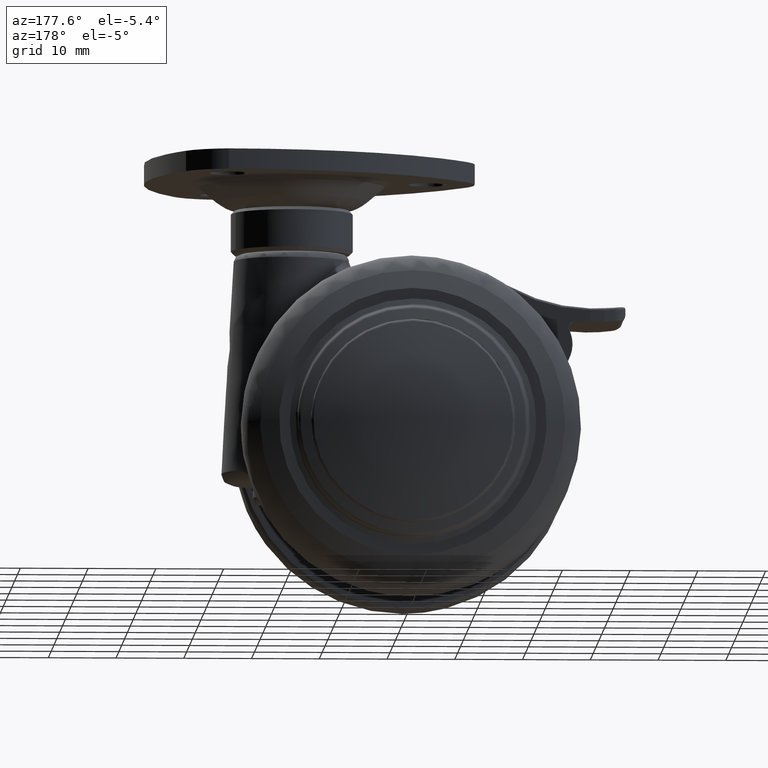
[diagram: clean part render]
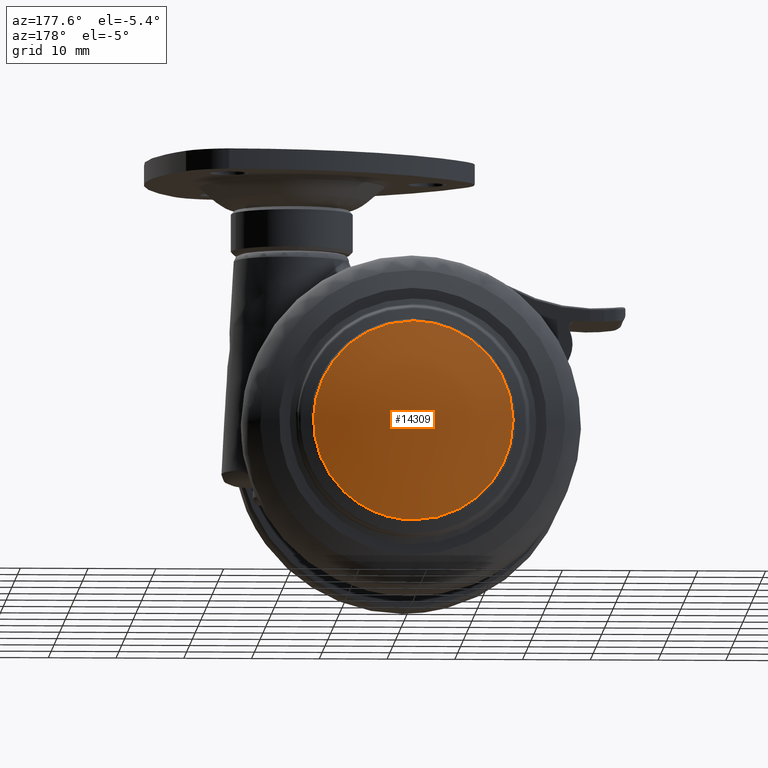
[diagram: same view with one face highlighted and labeled with its STEP entity id]
A machine part, auxiliary view. The second image highlights one B-rep face of the part: STEP entity #14309.
In plain terms, the highlighted face is a freeform B-spline surface patch.
Its self-contained STEP definition (entity closure, byte-faithful):
#11218=CARTESIAN_POINT('',(5.926938161823641,22.599255053341800,-13.481635294383331));
#11219=VERTEX_POINT('',#11218);
#11233=CARTESIAN_POINT('',(0.0,22.599255056600999,14.726951002130320));
#11234=VERTEX_POINT('',#11233);
#11235=CARTESIAN_POINT('',(0.0,22.599255056600999,14.726951002130320));
#11236=CARTESIAN_POINT('',(14.726951002130319,22.599255056600999,14.726951002130319));
#11237=CARTESIAN_POINT('',(14.726951002130320,22.599255056600999,-2.621149E-016));
#11238=CARTESIAN_POINT('',(14.726951002130319,22.599255056600992,-9.612881172707668));
#11239=CARTESIAN_POINT('',(5.926938161823641,22.599255053341789,-13.481635294383334));
#11247=(BOUNDED_CURVE()B_SPLINE_CURVE(2,(#11235,#11236,#11237,#11238,#11239),.UNSPECIFIED.,.F.,.U.)B_SPLINE_CURVE_WITH_KNOTS((3,2,3),(0.500000000000000,0.750000000000000,0.931662010431912),.UNSPECIFIED.)CURVE()GEOMETRIC_REPRESENTATION_ITEM()RATIONAL_B_SPLINE_CURVE((1.0,0.707106781186548,1.0,0.787169716113897,0.883644850240147))REPRESENTATION_ITEM(''));
#11248=EDGE_CURVE('',#11234,#11219,#11247,.T.);
#11250=CARTESIAN_POINT('',(-14.309172923474369,22.599255056404619,-3.482909141406380));
#11251=VERTEX_POINT('',#11250);
#11252=CARTESIAN_POINT('',(-14.309172923474376,22.599255056404626,-3.482909141406380));
#11253=CARTESIAN_POINT('',(-14.726951002130326,22.599255056601002,-1.766510998526684));
#11254=CARTESIAN_POINT('',(-14.726951002130320,22.599255056600999,-2.621149E-016));
#11255=CARTESIAN_POINT('',(-14.726951002130319,22.599255056600999,14.726951002130319));
#11256=CARTESIAN_POINT('',(0.0,22.599255056600999,14.726951002130320));
#11264=(BOUNDED_CURVE()B_SPLINE_CURVE(2,(#11252,#11253,#11254,#11255,#11256),.UNSPECIFIED.,.F.,.U.)B_SPLINE_CURVE_WITH_KNOTS((3,2,3),(0.209598322307066,0.250000000000000,0.500000000000000),.UNSPECIFIED.)CURVE()GEOMETRIC_REPRESENTATION_ITEM()RATIONAL_B_SPLINE_CURVE((0.920631806224154,0.952666490300212,1.0,0.707106781186548,1.0))REPRESENTATION_ITEM(''));
#11265=EDGE_CURVE('',#11251,#11234,#11264,.T.);
#11310=CARTESIAN_POINT('',(0.0,22.599255056600999,-14.726951002130320));
#11311=VERTEX_POINT('',#11310);
#11312=CARTESIAN_POINT('',(0.0,22.599255056600999,-14.726951002130320));
#11313=CARTESIAN_POINT('',(-11.572328774366317,22.599255056600992,-14.726951002130322));
#11314=CARTESIAN_POINT('',(-14.309172923474378,22.599255056404619,-3.482909141406380));
#11322=(BOUNDED_CURVE()B_SPLINE_CURVE(2,(#11312,#11313,#11314),.UNSPECIFIED.,.F.,.U.)B_SPLINE_CURVE_WITH_KNOTS((3,3),(0.0,0.209598322307066),.UNSPECIFIED.)CURVE()GEOMETRIC_REPRESENTATION_ITEM()RATIONAL_B_SPLINE_CURVE((1.0,0.754440290886335,0.920631806224154))REPRESENTATION_ITEM(''));
#11323=EDGE_CURVE('',#11311,#11251,#11322,.T.);
#11325=CARTESIAN_POINT('',(5.926938161823641,22.599255053341793,-13.481635294383336));
#11326=CARTESIAN_POINT('',(3.094296429752681,22.599255056600999,-14.726951002130324));
#11327=CARTESIAN_POINT('',(0.0,22.599255056600999,-14.726951002130320));
#11335=(BOUNDED_CURVE()B_SPLINE_CURVE(2,(#11325,#11326,#11327),.UNSPECIFIED.,.F.,.U.)B_SPLINE_CURVE_WITH_KNOTS((3,3),(0.931662010431912,1.0),.UNSPECIFIED.)CURVE()GEOMETRIC_REPRESENTATION_ITEM()RATIONAL_B_SPLINE_CURVE((0.883644850240147,0.919937065072651,1.0))REPRESENTATION_ITEM(''));
#11336=EDGE_CURVE('',#11219,#11311,#11335,.T.);
#14279=CARTESIAN_POINT('',(-15.829709842010661,20.005647351095902,15.829986090365244));
#14280=CARTESIAN_POINT('',(-8.071202480209092,22.208393669579195,16.142686665696019));
#14281=CARTESIAN_POINT('',(8.068882567178905,22.208393669579195,16.142686665696019));
#14282=CARTESIAN_POINT('',(15.825336094572215,20.006888932141290,15.830162344482185));
#14283=CARTESIAN_POINT('',(-16.142416089958182,22.208472070397931,8.071348897715129));
#14284=CARTESIAN_POINT('',(-8.233857186931674,24.499999999999989,8.234000878099884));
#14285=CARTESIAN_POINT('',(8.231490521911994,24.499999999999989,8.234000878099884));
#14286=CARTESIAN_POINT('',(16.137959491341814,22.209763189586987,8.071440540976507));
#14287=CARTESIAN_POINT('',(-16.142416089958182,22.208472070397931,-8.071348783451848));
#14288=CARTESIAN_POINT('',(-8.233857186931674,24.499999999999989,-8.234000761533995));
#14289=CARTESIAN_POINT('',(8.231490521911994,24.499999999999989,-8.234000761533995));
#14290=CARTESIAN_POINT('',(16.137959491341814,22.209763189586987,-8.071440426711929));
#14291=CARTESIAN_POINT('',(-15.829709850692895,20.005647412256948,-15.829985874948019));
#14292=CARTESIAN_POINT('',(-8.071202484723408,22.208393733180419,-16.142686446198404));
#14293=CARTESIAN_POINT('',(8.068882571691924,22.208393733180419,-16.142686446198404));
#14294=CARTESIAN_POINT('',(15.825336103252146,20.006888993303701,-15.830162129062655));
#14302=(BOUNDED_SURFACE()B_SPLINE_SURFACE(2,2,((#14279,#14283,#14287,#14291),(#14280,#14284,#14288,#14292),(#14281,#14285,#14289,#14293),(#14282,#14286,#14290,#14294)),.UNSPECIFIED.,.F.,.F.,.U.)B_SPLINE_SURFACE_WITH_KNOTS((3,1,3),(3,1,3),(13.223013078975679,29.153157823789790,45.078723752689363),(13.222735077905661,29.153157823789780,45.083580344152452),.UNSPECIFIED.)GEOMETRIC_REPRESENTATION_ITEM()RATIONAL_B_SPLINE_SURFACE(((1.040304246775229,1.020151771710773,1.020151771710773,1.040304246204646),(1.020152475064455,1.0,1.0,1.020152474493872),(1.020152475064455,1.0,1.0,1.020152474493872),(1.040292663956154,1.020140188891698,1.020140188891698,1.040292663385571)))REPRESENTATION_ITEM('')SURFACE());
#14303=ORIENTED_EDGE('',*,*,#11323,.T.);
#14304=ORIENTED_EDGE('',*,*,#11265,.T.);
#14305=ORIENTED_EDGE('',*,*,#11248,.T.);
#14306=ORIENTED_EDGE('',*,*,#11336,.T.);
#14307=EDGE_LOOP('',(#14303,#14304,#14305,#14306));
#14308=FACE_OUTER_BOUND('',#14307,.T.);
#14309=ADVANCED_FACE('',(#14308),#14302,.T.);